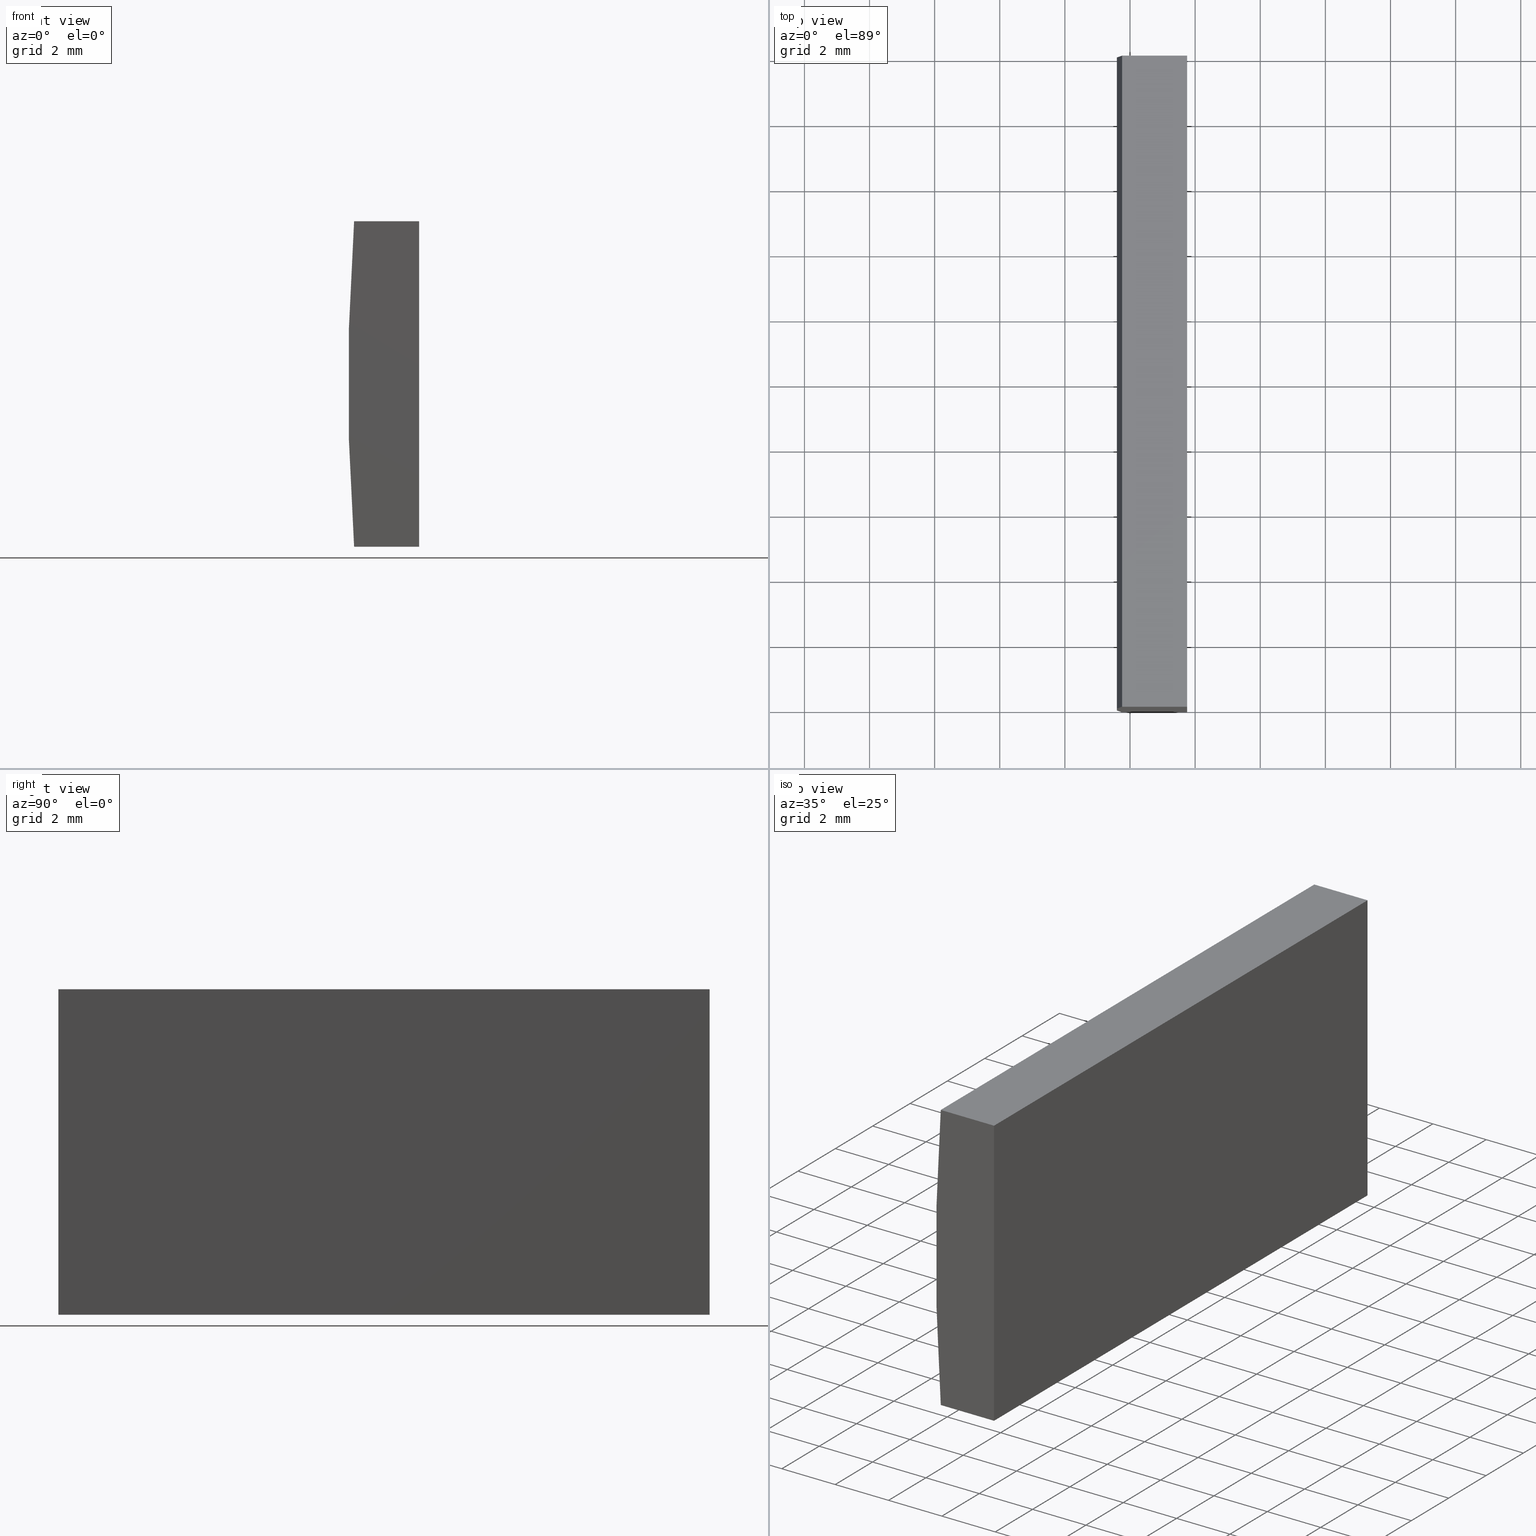
[diagram: canonical four-view strip — front | top / right | iso, engineering-drawing reading convention]
A machine part, canonical four-view strip (front | top / right | iso — engineering-drawing reading convention). The complete STEP part file that produces these views, byte-faithful:
ISO-10303-21;
HEADER;
FILE_DESCRIPTION (( 'STEP AP214' ),
    '1' );
FILE_NAME ('155286.STEP',
    '2019-06-26T02:40:06',
    ( 'user' ),
    ( '΢���й�' ),
    'SwSTEP 2.0',
    'SolidWorks 2016',
    '' );
FILE_SCHEMA (( 'AUTOMOTIVE_DESIGN' ));
ENDSEC;

DATA;
#1 = CARTESIAN_POINT ( 'NONE',  ( -64.24281604474863600, 20.00000000000000000, 5.000000000000000000 ) ) ;
#2 = LINE ( 'NONE', #107, #136 ) ;
#3 = CARTESIAN_POINT ( 'NONE',  ( -62.24479566514875000, 0.0000000000000000000, 5.000000000000000000 ) ) ;
#4 =( GEOMETRIC_REPRESENTATION_CONTEXT ( 3 ) GLOBAL_UNCERTAINTY_ASSIGNED_CONTEXT ( ( #182 ) ) GLOBAL_UNIT_ASSIGNED_CONTEXT ( ( #22, #163, #179 ) ) REPRESENTATION_CONTEXT ( 'NONE', 'WORKASPACE' ) );
#5 = DIRECTION ( 'NONE',  ( 0.0000000000000000000, 0.0000000000000000000, 1.000000000000000000 ) ) ;
#6 = DIRECTION ( 'NONE',  ( -1.000000000000000000, -0.0000000000000000000, 8.682211121010675500E-016 ) ) ;
#7 = DIRECTION ( 'NONE',  ( -0.0000000000000000000, -0.0000000000000000000, -1.000000000000000000 ) ) ;
#8 = LINE ( 'NONE', #73, #68 ) ;
#9 = AXIS2_PLACEMENT_3D ( 'NONE', #69, #173, #154 ) ;
#10 = LINE ( 'NONE', #61, #32 ) ;
#11 = VECTOR ( 'NONE', #160, 1000.000000000000000 ) ;
#12 = EDGE_CURVE ( 'NONE', #181, #126, #118, .T. ) ;
#13 = EDGE_CURVE ( 'NONE', #162, #50, #8, .T. ) ;
#14 = DIRECTION ( 'NONE',  ( 0.0000000000000000000, -0.0000000000000000000, 1.000000000000000000 ) ) ;
#15 = ORIENTED_EDGE ( 'NONE', *, *, #12, .T. ) ;
#16 = EDGE_CURVE ( 'NONE', #162, #123, #198, .T. ) ;
#17 = VECTOR ( 'NONE', #6, 1000.000000000000000 ) ;
#18 = CARTESIAN_POINT ( 'NONE',  ( -62.24479566514875000, 0.0000000000000000000, -5.000000000000001800 ) ) ;
#19 = LINE ( 'NONE', #131, #17 ) ;
#20 = AXIS2_PLACEMENT_3D ( 'NONE', #200, #56, #129 ) ;
#21 = SURFACE_SIDE_STYLE ('',( #144 ) ) ;
#22 =( LENGTH_UNIT ( ) NAMED_UNIT ( * ) SI_UNIT ( .MILLI., .METRE. ) );
#23 = ORIENTED_EDGE ( 'NONE', *, *, #64, .T. ) ;
#24 = ADVANCED_FACE ( 'NONE', ( #190 ), #152, .F. ) ;
#25 = VERTEX_POINT ( 'NONE', #3 ) ;
#26 = ORIENTED_EDGE ( 'NONE', *, *, #81, .T. ) ;
#27 = CARTESIAN_POINT ( 'NONE',  ( -64.24281604474863600, 20.00000000000000000, -5.000000000000000000 ) ) ;
#28 = DIRECTION ( 'NONE',  ( -1.000000000000000000, 0.0000000000000000000, -0.0000000000000000000 ) ) ;
#29 = VECTOR ( 'NONE', #142, 1000.000000000000000 ) ;
#30 = ADVANCED_FACE ( 'NONE', ( #145 ), #48, .F. ) ;
#31 = DIRECTION ( 'NONE',  ( 1.000000000000000000, 0.0000000000000000000, 0.0000000000000000000 ) ) ;
#32 = VECTOR ( 'NONE', #59, 1000.000000000000000 ) ;
#33 = MANIFOLD_SOLID_BREP ( '͹̨-����1', #102 ) ;
#34 = CARTESIAN_POINT ( 'NONE',  ( -62.24479566514875000, 20.00000000000000000, -5.000000000000001800 ) ) ;
#35 = DIRECTION ( 'NONE',  ( 0.0000000000000000000, -0.0000000000000000000, 1.000000000000000000 ) ) ;
#36 = CARTESIAN_POINT ( 'NONE',  ( 4.355204334851265500, 20.00000000000000000, 4.286263797015675000E-017 ) ) ;
#37 = PRODUCT ( '155286', '155286', '', ( #75 ) ) ;
#38 = CIRCLE ( 'NONE', #146, 68.78000000000000100 ) ;
#39 = CARTESIAN_POINT ( 'NONE',  ( -64.24281604474863600, 0.0000000000000000000, 5.000000000000000000 ) ) ;
#40 = LINE ( 'NONE', #165, #184 ) ;
#41 = DIRECTION ( 'NONE',  ( 0.0000000000000000000, 0.0000000000000000000, -1.000000000000000000 ) ) ;
#42 = FILL_AREA_STYLE_COLOUR ( '', #62 ) ;
#43 = PRODUCT_DEFINITION_SHAPE ( 'NONE', 'NONE',  #196 ) ;
#44 = VECTOR ( 'NONE', #91, 1000.000000000000000 ) ;
#45 = ORIENTED_EDGE ( 'NONE', *, *, #113, .T. ) ;
#46 =( NAMED_UNIT ( * ) SI_UNIT ( $, .STERADIAN. ) SOLID_ANGLE_UNIT ( ) );
#47 = AXIS2_PLACEMENT_3D ( 'NONE', #79, #109, #185 ) ;
#48 = PLANE ( 'NONE',  #203 ) ;
#49 = ADVANCED_FACE ( 'NONE', ( #88 ), #101, .F. ) ;
#50 = VERTEX_POINT ( 'NONE', #27 ) ;
#51 = APPLICATION_PROTOCOL_DEFINITION ( 'draft international standard', 'automotive_design', 1998, #176 ) ;
#52 = ORIENTED_EDGE ( 'NONE', *, *, #87, .F. ) ;
#53 = CARTESIAN_POINT ( 'NONE',  ( -64.24281604474863600, 20.00000000000000000, 5.000000000000000000 ) ) ;
#54 = EDGE_CURVE ( 'NONE', #50, #181, #38, .T. ) ;
#55 = DIRECTION ( 'NONE',  ( 0.0000000000000000000, 0.0000000000000000000, 1.000000000000000000 ) ) ;
#56 = DIRECTION ( 'NONE',  ( -0.0000000000000000000, -1.000000000000000000, -0.0000000000000000000 ) ) ;
#57 = DIRECTION ( 'NONE',  ( -0.0000000000000000000, -1.000000000000000000, -0.0000000000000000000 ) ) ;
#58 = ORIENTED_EDGE ( 'NONE', *, *, #81, .F. ) ;
#59 = DIRECTION ( 'NONE',  ( -0.0000000000000000000, -1.000000000000000000, -0.0000000000000000000 ) ) ;
#60 = EDGE_LOOP ( 'NONE', ( #204, #114, #202, #23 ) ) ;
#61 = CARTESIAN_POINT ( 'NONE',  ( -62.24479566514875000, 20.00000000000000000, 5.000000000000000000 ) ) ;
#62 = COLOUR_RGB ( '',1.000000000000000000, 1.000000000000000000, 1.000000000000000000 ) ;
#63 = ORIENTED_EDGE ( 'NONE', *, *, #186, .T. ) ;
#64 = EDGE_CURVE ( 'NONE', #126, #25, #10, .T. ) ;
#65 = LINE ( 'NONE', #82, #105 ) ;
#66 = PRESENTATION_STYLE_ASSIGNMENT (( #78 ) ) ;
#67 = MECHANICAL_DESIGN_GEOMETRIC_PRESENTATION_REPRESENTATION (  '', ( #83 ), #4 ) ;
#68 = VECTOR ( 'NONE', #84, 1000.000000000000000 ) ;
#69 = CARTESIAN_POINT ( 'NONE',  ( 4.355204334851265500, 0.0000000000000000000, 4.286263797015675000E-017 ) ) ;
#70 = PRESENTATION_STYLE_ASSIGNMENT (( #104 ) ) ;
#71 = ORIENTED_EDGE ( 'NONE', *, *, #13, .T. ) ;
#72 = ORIENTED_EDGE ( 'NONE', *, *, #151, .T. ) ;
#73 = CARTESIAN_POINT ( 'NONE',  ( -64.24281604474863600, 20.00000000000000000, -5.000000000000000000 ) ) ;
#74 = PRESENTATION_LAYER_ASSIGNMENT (  '', '', ( #83 ) ) ;
#75 = PRODUCT_CONTEXT ( 'NONE', #176, 'mechanical' ) ;
#76 = MECHANICAL_DESIGN_GEOMETRIC_PRESENTATION_REPRESENTATION (  '', ( #167 ), #121 ) ;
#77 = CARTESIAN_POINT ( 'NONE',  ( -62.24479566514875000, 20.00000000000000000, -5.000000000000001800 ) ) ;
#78 = SURFACE_STYLE_USAGE ( .BOTH. , #150 ) ;
#79 = CARTESIAN_POINT ( 'NONE',  ( -64.24281604474863600, 20.00000000000000000, -5.000000000000000000 ) ) ;
#80 = UNCERTAINTY_MEASURE_WITH_UNIT (LENGTH_MEASURE( 1.000000000000000100E-005 ), #110, 'distance_accuracy_value', 'NONE');
#81 = EDGE_CURVE ( 'NONE', #50, #161, #103, .T. ) ;
#82 = CARTESIAN_POINT ( 'NONE',  ( -62.24479566514875000, 20.00000000000000000, -5.000000000000001800 ) ) ;
#83 = STYLED_ITEM ( 'NONE', ( #66 ), #100 ) ;
#84 = DIRECTION ( 'NONE',  ( -1.000000000000000000, -0.0000000000000000000, 8.682211121010675500E-016 ) ) ;
#85 = CARTESIAN_POINT ( 'NONE',  ( -62.24479566514875000, 20.00000000000000000, -5.000000000000001800 ) ) ;
#86 = ORIENTED_EDGE ( 'NONE', *, *, #151, .F. ) ;
#87 = EDGE_CURVE ( 'NONE', #99, #25, #40, .T. ) ;
#88 = FACE_OUTER_BOUND ( 'NONE', #164, .T. ) ;
#89 = DIRECTION ( 'NONE',  ( -1.000000000000000000, 0.0000000000000000000, 0.0000000000000000000 ) ) ;
#90 = EDGE_CURVE ( 'NONE', #25, #123, #170, .T. ) ;
#91 = DIRECTION ( 'NONE',  ( 1.000000000000000000, 0.0000000000000000000, 0.0000000000000000000 ) ) ;
#92 = DIRECTION ( 'NONE',  ( 0.0000000000000000000, 1.000000000000000000, 0.0000000000000000000 ) ) ;
#93 = DIRECTION ( 'NONE',  ( 1.000000000000000000, 0.0000000000000000000, 0.0000000000000000000 ) ) ;
#94 = AXIS2_PLACEMENT_3D ( 'NONE', #77, #89, #5 ) ;
#95 =( GEOMETRIC_REPRESENTATION_CONTEXT ( 3 ) GLOBAL_UNCERTAINTY_ASSIGNED_CONTEXT ( ( #80 ) ) GLOBAL_UNIT_ASSIGNED_CONTEXT ( ( #110, #134, #46 ) ) REPRESENTATION_CONTEXT ( 'NONE', 'WORKASPACE' ) );
#96 = ORIENTED_EDGE ( 'NONE', *, *, #172, .T. ) ;
#97 = ADVANCED_FACE ( 'NONE', ( #194 ), #166, .T. ) ;
#98 = AXIS2_PLACEMENT_3D ( 'NONE', #116, #187, #35 ) ;
#99 = VERTEX_POINT ( 'NONE', #39 ) ;
#100 = ADVANCED_BREP_SHAPE_REPRESENTATION ( '155286', ( #33, #125 ), #95 ) ;
#101 = PLANE ( 'NONE',  #47 ) ;
#102 = CLOSED_SHELL ( 'NONE', ( #97, #24, #189, #49, #155, #30 ) ) ;
#103 = LINE ( 'NONE', #192, #29 ) ;
#104 = SURFACE_STYLE_USAGE ( .BOTH. , #21 ) ;
#105 = VECTOR ( 'NONE', #7, 1000.000000000000000 ) ;
#106 = SURFACE_STYLE_FILL_AREA ( #174 ) ;
#107 = CARTESIAN_POINT ( 'NONE',  ( -64.24281604474863600, 20.00000000000000000, 5.000000000000000000 ) ) ;
#108 = PLANE ( 'NONE',  #98 ) ;
#109 = DIRECTION ( 'NONE',  ( 8.682211121010674500E-016, -0.0000000000000000000, 1.000000000000000000 ) ) ;
#110 =( LENGTH_UNIT ( ) NAMED_UNIT ( * ) SI_UNIT ( .MILLI., .METRE. ) );
#111 = VECTOR ( 'NONE', #135, 1000.000000000000000 ) ;
#112 = CIRCLE ( 'NONE', #9, 68.78000000000000100 ) ;
#113 = EDGE_CURVE ( 'NONE', #181, #99, #2, .T. ) ;
#114 = ORIENTED_EDGE ( 'NONE', *, *, #16, .F. ) ;
#115 = ORIENTED_EDGE ( 'NONE', *, *, #172, .F. ) ;
#116 = CARTESIAN_POINT ( 'NONE',  ( 4.355204334851265500, 20.00000000000000000, 4.286263797015675000E-017 ) ) ;
#117 = FACE_OUTER_BOUND ( 'NONE', #130, .T. ) ;
#118 = LINE ( 'NONE', #53, #44 ) ;
#119 = DIRECTION ( 'NONE',  ( 0.0000000000000000000, 0.0000000000000000000, 1.000000000000000000 ) ) ;
#120 = CARTESIAN_POINT ( 'NONE',  ( 0.0000000000000000000, 0.0000000000000000000, 0.0000000000000000000 ) ) ;
#121 =( GEOMETRIC_REPRESENTATION_CONTEXT ( 3 ) GLOBAL_UNCERTAINTY_ASSIGNED_CONTEXT ( ( #147 ) ) GLOBAL_UNIT_ASSIGNED_CONTEXT ( ( #177, #158, #171 ) ) REPRESENTATION_CONTEXT ( 'NONE', 'WORKASPACE' ) );
#122 = APPLICATION_CONTEXT ( 'automotive_design' ) ;
#123 = VERTEX_POINT ( 'NONE', #197 ) ;
#124 = PLANE ( 'NONE',  #94 ) ;
#125 = AXIS2_PLACEMENT_3D ( 'NONE', #120, #55, #93 ) ;
#126 = VERTEX_POINT ( 'NONE', #159 ) ;
#127 = FILL_AREA_STYLE_COLOUR ( '', #137 ) ;
#128 = PRESENTATION_LAYER_ASSIGNMENT (  '', '', ( #167 ) ) ;
#129 = DIRECTION ( 'NONE',  ( 0.0000000000000000000, 0.0000000000000000000, -1.000000000000000000 ) ) ;
#130 = EDGE_LOOP ( 'NONE', ( #140, #15, #63, #71 ) ) ;
#131 = CARTESIAN_POINT ( 'NONE',  ( -64.24281604474863600, 0.0000000000000000000, -5.000000000000000000 ) ) ;
#132 = ORIENTED_EDGE ( 'NONE', *, *, #54, .F. ) ;
#133 = CARTESIAN_POINT ( 'NONE',  ( -64.24281604474863600, 0.0000000000000000000, -5.000000000000000000 ) ) ;
#134 =( NAMED_UNIT ( * ) PLANE_ANGLE_UNIT ( ) SI_UNIT ( $, .RADIAN. ) );
#135 = DIRECTION ( 'NONE',  ( -0.0000000000000000000, -1.000000000000000000, -0.0000000000000000000 ) ) ;
#136 = VECTOR ( 'NONE', #57, 1000.000000000000000 ) ;
#137 = COLOUR_RGB ( '',1.000000000000000000, 1.000000000000000000, 1.000000000000000000 ) ;
#138 = CARTESIAN_POINT ( 'NONE',  ( -64.24281604474863600, 20.00000000000000000, 5.000000000000000000 ) ) ;
#139 = ORIENTED_EDGE ( 'NONE', *, *, #87, .T. ) ;
#140 = ORIENTED_EDGE ( 'NONE', *, *, #54, .T. ) ;
#141 = AXIS2_PLACEMENT_3D ( 'NONE', #138, #41, #28 ) ;
#142 = DIRECTION ( 'NONE',  ( -0.0000000000000000000, -1.000000000000000000, -0.0000000000000000000 ) ) ;
#143 = APPLICATION_PROTOCOL_DEFINITION ( 'draft international standard', 'automotive_design', 1998, #122 ) ;
#144 = SURFACE_STYLE_FILL_AREA ( #183 ) ;
#145 = FACE_OUTER_BOUND ( 'NONE', #178, .T. ) ;
#146 = AXIS2_PLACEMENT_3D ( 'NONE', #36, #156, #119 ) ;
#147 = UNCERTAINTY_MEASURE_WITH_UNIT (LENGTH_MEASURE( 1.000000000000000100E-005 ), #177, 'distance_accuracy_value', 'NONE');
#148 = ORIENTED_EDGE ( 'NONE', *, *, #64, .F. ) ;
#149 = ORIENTED_EDGE ( 'NONE', *, *, #16, .T. ) ;
#150 = SURFACE_SIDE_STYLE ('',( #106 ) ) ;
#151 = EDGE_CURVE ( 'NONE', #161, #99, #112, .T. ) ;
#152 = PLANE ( 'NONE',  #141 ) ;
#153 = EDGE_LOOP ( 'NONE', ( #72, #199, #132, #26 ) ) ;
#154 = DIRECTION ( 'NONE',  ( 0.0000000000000000000, 0.0000000000000000000, 1.000000000000000000 ) ) ;
#155 = ADVANCED_FACE ( 'NONE', ( #117 ), #108, .T. ) ;
#156 = DIRECTION ( 'NONE',  ( 0.0000000000000000000, 1.000000000000000000, 0.0000000000000000000 ) ) ;
#157 = EDGE_LOOP ( 'NONE', ( #139, #148, #201, #45 ) ) ;
#158 =( NAMED_UNIT ( * ) PLANE_ANGLE_UNIT ( ) SI_UNIT ( $, .RADIAN. ) );
#159 = CARTESIAN_POINT ( 'NONE',  ( -62.24479566514875000, 20.00000000000000000, 5.000000000000000000 ) ) ;
#160 = DIRECTION ( 'NONE',  ( -0.0000000000000000000, -0.0000000000000000000, -1.000000000000000000 ) ) ;
#161 = VERTEX_POINT ( 'NONE', #133 ) ;
#162 = VERTEX_POINT ( 'NONE', #34 ) ;
#163 =( NAMED_UNIT ( * ) PLANE_ANGLE_UNIT ( ) SI_UNIT ( $, .RADIAN. ) );
#164 = EDGE_LOOP ( 'NONE', ( #96, #58, #180, #149 ) ) ;
#165 = CARTESIAN_POINT ( 'NONE',  ( -64.24281604474863600, 0.0000000000000000000, 5.000000000000000000 ) ) ;
#166 = CYLINDRICAL_SURFACE ( 'NONE', #20, 68.78000000000000100 ) ;
#167 = STYLED_ITEM ( 'NONE', ( #70 ), #33 ) ;
#168 = PRODUCT_DEFINITION_CONTEXT ( 'detailed design', #122, 'design' ) ;
#169 = ORIENTED_EDGE ( 'NONE', *, *, #90, .F. ) ;
#170 = LINE ( 'NONE', #18, #11 ) ;
#171 =( NAMED_UNIT ( * ) SI_UNIT ( $, .STERADIAN. ) SOLID_ANGLE_UNIT ( ) );
#172 = EDGE_CURVE ( 'NONE', #123, #161, #19, .T. ) ;
#173 = DIRECTION ( 'NONE',  ( 0.0000000000000000000, 1.000000000000000000, 0.0000000000000000000 ) ) ;
#174 = FILL_AREA_STYLE ('',( #42 ) ) ;
#175 = FACE_OUTER_BOUND ( 'NONE', #60, .T. ) ;
#176 = APPLICATION_CONTEXT ( 'automotive_design' ) ;
#177 =( LENGTH_UNIT ( ) NAMED_UNIT ( * ) SI_UNIT ( .MILLI., .METRE. ) );
#178 = EDGE_LOOP ( 'NONE', ( #86, #115, #169, #52 ) ) ;
#179 =( NAMED_UNIT ( * ) SI_UNIT ( $, .STERADIAN. ) SOLID_ANGLE_UNIT ( ) );
#180 = ORIENTED_EDGE ( 'NONE', *, *, #13, .F. ) ;
#181 = VERTEX_POINT ( 'NONE', #1 ) ;
#182 = UNCERTAINTY_MEASURE_WITH_UNIT (LENGTH_MEASURE( 1.000000000000000100E-005 ), #22, 'distance_accuracy_value', 'NONE');
#183 = FILL_AREA_STYLE ('',( #127 ) ) ;
#184 = VECTOR ( 'NONE', #31, 1000.000000000000000 ) ;
#185 = DIRECTION ( 'NONE',  ( 1.000000000000000000, 0.0000000000000000000, -8.682211121010674500E-016 ) ) ;
#186 = EDGE_CURVE ( 'NONE', #126, #162, #65, .T. ) ;
#187 = DIRECTION ( 'NONE',  ( 0.0000000000000000000, 1.000000000000000000, 0.0000000000000000000 ) ) ;
#188 = SHAPE_DEFINITION_REPRESENTATION ( #43, #100 ) ;
#189 = ADVANCED_FACE ( 'NONE', ( #175 ), #124, .F. ) ;
#190 = FACE_OUTER_BOUND ( 'NONE', #157, .T. ) ;
#191 = PRODUCT_RELATED_PRODUCT_CATEGORY ( 'part', '', ( #37 ) ) ;
#192 = CARTESIAN_POINT ( 'NONE',  ( -64.24281604474863600, 20.00000000000000000, -5.000000000000000000 ) ) ;
#193 = PRODUCT_DEFINITION_FORMATION_WITH_SPECIFIED_SOURCE ( '�κ�', '', #37, .NOT_KNOWN. ) ;
#194 = FACE_OUTER_BOUND ( 'NONE', #153, .T. ) ;
#195 = CARTESIAN_POINT ( 'NONE',  ( 4.355204334851265500, 0.0000000000000000000, 4.286263797015675000E-017 ) ) ;
#196 = PRODUCT_DEFINITION ( 'δ֪', '', #193, #168 ) ;
#197 = CARTESIAN_POINT ( 'NONE',  ( -62.24479566514875000, 0.0000000000000000000, -5.000000000000001800 ) ) ;
#198 = LINE ( 'NONE', #85, #111 ) ;
#199 = ORIENTED_EDGE ( 'NONE', *, *, #113, .F. ) ;
#200 = CARTESIAN_POINT ( 'NONE',  ( 4.355204334851265500, 20.00000000000000000, 4.286263797015675000E-017 ) ) ;
#201 = ORIENTED_EDGE ( 'NONE', *, *, #12, .F. ) ;
#202 = ORIENTED_EDGE ( 'NONE', *, *, #186, .F. ) ;
#203 = AXIS2_PLACEMENT_3D ( 'NONE', #195, #92, #14 ) ;
#204 = ORIENTED_EDGE ( 'NONE', *, *, #90, .T. ) ;
ENDSEC;
END-ISO-10303-21;
